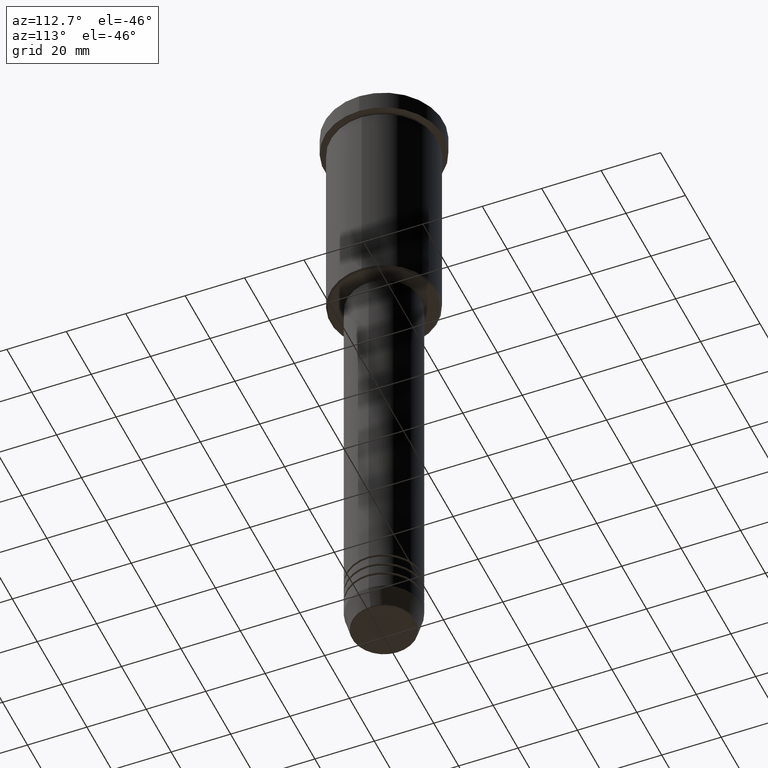
[diagram: clean part render]
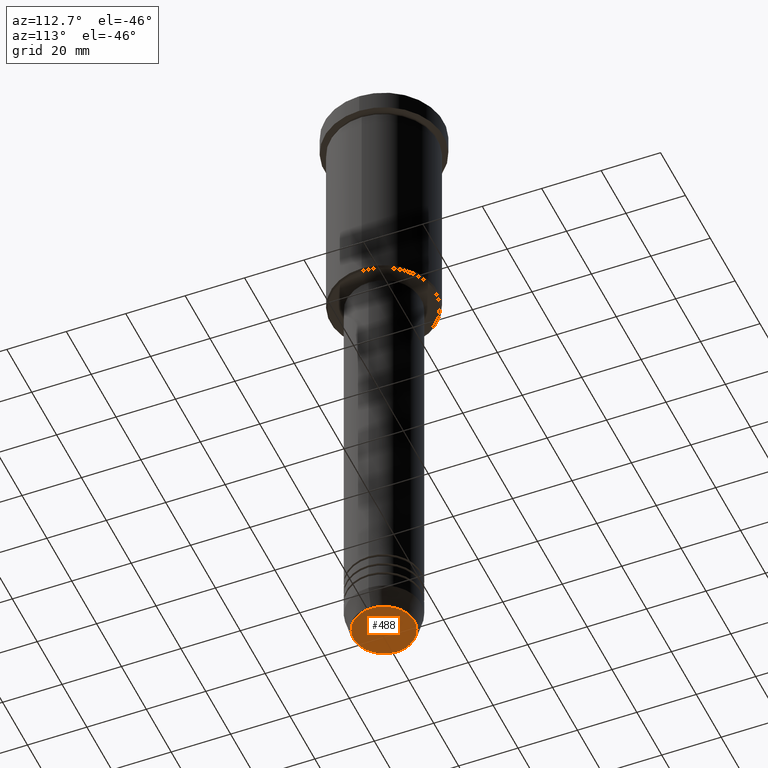
[diagram: same view with one face highlighted and labeled with its STEP entity id]
A machine part, auxiliary view. The second image highlights one B-rep face of the part: STEP entity #488.
In plain terms, the highlighted planar face has unit normal (0, -0, 1).
Its self-contained STEP definition (entity closure, byte-faithful):
#92 = DIRECTION ( 'NONE',  ( 1.000000000000000000, 0.000000000000000000, 0.000000000000000000 ) ) ;
#97 = VERTEX_POINT ( 'NONE', #956 ) ;
#121 = EDGE_LOOP ( 'NONE', ( #904, #252 ) ) ;
#225 = DIRECTION ( 'NONE',  ( 1.000000000000000000, 0.000000000000000000, 0.000000000000000000 ) ) ;
#252 = ORIENTED_EDGE ( 'NONE', *, *, #383, .T. ) ;
#263 = CARTESIAN_POINT ( 'NONE',  ( 0.000000000000000000, 0.000000000000000000, -219.9999999999999716 ) ) ;
#334 = CIRCLE ( 'NONE', #774, 10.24069215899266538 ) ;
#383 = EDGE_CURVE ( 'NONE', #97, #532, #849, .T. ) ;
#488 = ADVANCED_FACE ( 'NONE', ( #649 ), #717, .F. ) ;
#532 = VERTEX_POINT ( 'NONE', #1082 ) ;
#535 = CARTESIAN_POINT ( 'NONE',  ( 0.000000000000000000, 0.000000000000000000, -219.9999999999999716 ) ) ;
#559 = AXIS2_PLACEMENT_3D ( 'NONE', #535, #1166, #711 ) ;
#570 = CARTESIAN_POINT ( 'NONE',  ( 0.000000000000000000, 0.000000000000000000, -219.9999999999999716 ) ) ;
#578 = EDGE_CURVE ( 'NONE', #532, #97, #334, .T. ) ;
#649 = FACE_OUTER_BOUND ( 'NONE', #121, .T. ) ;
#711 = DIRECTION ( 'NONE',  ( 1.000000000000000000, 0.000000000000000000, 0.000000000000000000 ) ) ;
#717 = PLANE ( 'NONE',  #732 ) ;
#732 = AXIS2_PLACEMENT_3D ( 'NONE', #263, #915, #92 ) ;
#774 = AXIS2_PLACEMENT_3D ( 'NONE', #570, #928, #225 ) ;
#849 = CIRCLE ( 'NONE', #559, 10.24069215899266538 ) ;
#904 = ORIENTED_EDGE ( 'NONE', *, *, #578, .T. ) ;
#915 = DIRECTION ( 'NONE',  ( 0.000000000000000000, -0.000000000000000000, 1.000000000000000000 ) ) ;
#928 = DIRECTION ( 'NONE',  ( 0.000000000000000000, 0.000000000000000000, -1.000000000000000000 ) ) ;
#956 = CARTESIAN_POINT ( 'NONE',  ( -10.24069215899266538, 1.283696036640842967E-15, -219.9999999999999716 ) ) ;
#1082 = CARTESIAN_POINT ( 'NONE',  ( 10.24069215899266538, 0.000000000000000000, -219.9999999999999716 ) ) ;
#1166 = DIRECTION ( 'NONE',  ( 0.000000000000000000, 0.000000000000000000, -1.000000000000000000 ) ) ;